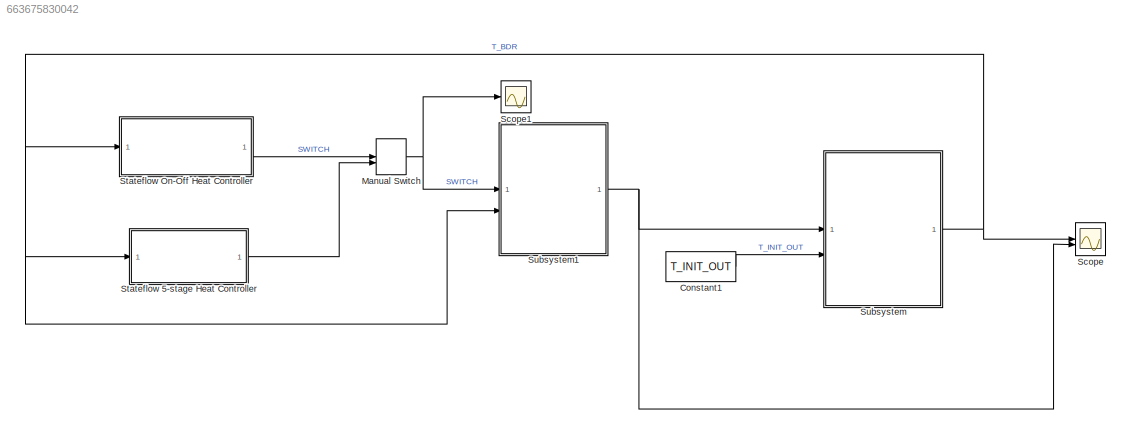
MODEL slx_663675830042
KIND model
CONFIG AbsTol = auto
CONFIG EnableMultiTasking = off
CONFIG FixedStep = 0.1
CONFIG InitFcn = PARAMETERS;
CONFIG MaxStep = auto
CONFIG MinStep = auto
CONFIG RelTol = 1e-3
CONFIG SampleTimeConstraint = Unconstrained
CONFIG SolverName = ode5
CONFIG StartFcn = PARAMETERS;
CONFIG StartTime = 0.0
CONFIG StopTime = 60*60*24
BLOCK [Constant] Constant1
  Value = T_INIT_OUT
BLOCK [ManualSwitch] Manual Switch
  CurrentSetting = 0
BLOCK [Scope] Scope
  Floating = off
  NumInputPorts = 2
  ScopeSpecificationString = Simulink.scopes.TimeScopeBlockCfg('CurrentConfiguration', extmgr.ConfigurationSet(extmgr.Configuration('Core','General UI',true),extmgr.Configuration('Core','Source UI',true),extmgr.Configuration('Sources','WiredSimulink',true),extmgr.Configuration('Visuals','Time Domain',true,'SerializedDisplays',{struct('MinYLimReal','15.23034','MaxYLimReal','22.92466','YLabelReal','','MinYLimMag','15.23034','Ma...<+2103ch>
BLOCK [Scope] Scope1
  Floating = off
  NumInputPorts = 1
  ScopeSpecificationString = Simulink.scopes.TimeScopeBlockCfg('CurrentConfiguration', extmgr.ConfigurationSet(extmgr.Configuration('Core','General UI',true),extmgr.Configuration('Core','Source UI',true),extmgr.Configuration('Sources','WiredSimulink',true,'DataLoggingVariableName','ScopeData1'),extmgr.Configuration('Visuals','Time Domain',true,'SerializedDisplays',{struct('MinYLimReal','-0.02671','MaxYLimReal','0.28116','YLab...<+1409ch>
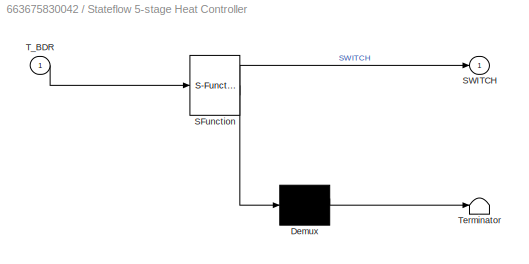
BLOCK [SubSystem] Stateflow 5-stage Heat Controller
  ErrorFcn = Stateflow.Translate.translate
  PermitHierarchicalResolution = ExplicitOnly
  SFBlockType = Chart
  TreatAsAtomicUnit = on
BLOCK [Demux] Stateflow 5-stage Heat Controller/ Demux 
  Outputs = 1
BLOCK [S-Function] Stateflow 5-stage Heat Controller/ SFunction 
  EnableBusSupport = on
  FunctionName = sf_sfun
  PortCounts = [1 2]
  SFcnIsStateOwnerBlock = off
  SFunctionDeploymentMode = off
  Tag = Stateflow S-Function 1
BLOCK [Terminator] Stateflow 5-stage Heat Controller/ Terminator 
BLOCK [Outport] Stateflow 5-stage Heat Controller/SWITCH
BLOCK [Inport] Stateflow 5-stage Heat Controller/T_BDR
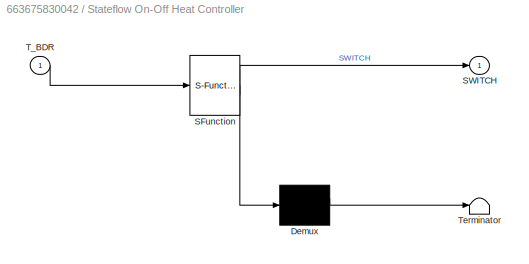
BLOCK [SubSystem] Stateflow On-Off Heat Controller
  ErrorFcn = Stateflow.Translate.translate
  PermitHierarchicalResolution = ExplicitOnly
  SFBlockType = Chart
  TreatAsAtomicUnit = on
BLOCK [Demux] Stateflow On-Off Heat Controller/ Demux 
  Outputs = 1
BLOCK [S-Function] Stateflow On-Off Heat Controller/ SFunction 
  EnableBusSupport = on
  FunctionName = sf_sfun
  PortCounts = [1 2]
  SFcnIsStateOwnerBlock = off
  SFunctionDeploymentMode = off
  Tag = Stateflow S-Function 3
BLOCK [Terminator] Stateflow On-Off Heat Controller/ Terminator 
BLOCK [Outport] Stateflow On-Off Heat Controller/SWITCH
BLOCK [Inport] Stateflow On-Off Heat Controller/T_BDR
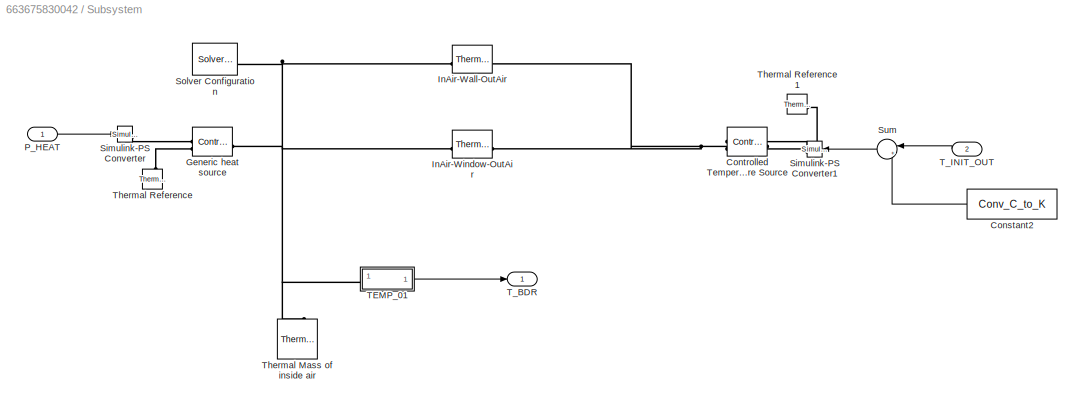
BLOCK [SubSystem] Subsystem
BLOCK [Constant] Subsystem/Constant2
  NameLocation = top
  Value = Conv_C_to_K
BLOCK [Reference] Subsystem/Controlled Temperature Source  REF=fl_lib/Thermal/Thermal Sources/Controlled
Temperature Source
  NameLocation = top
  SourceBlock = fl_lib/Thermal/Thermal Sources/Controlled\nTemperature Source
  SourceType = Controlled\nTemperature Source
BLOCK [Reference] Subsystem/Generic heat source  REF=fl_lib/Thermal/Thermal Sources/Controlled Heat Flow
Rate Source
  SourceBlock = fl_lib/Thermal/Thermal Sources/Controlled Heat Flow\nRate Source
  SourceType = Controlled Heat Flow\nRate Source
BLOCK [Reference] Subsystem/InAir-Wall-OutAir  REF=fl_lib/Thermal/Thermal Elements/Thermal Resistance
  SourceBlock = fl_lib/Thermal/Thermal Elements/Thermal Resistance
  SourceType = Thermal Resistance
BLOCK [Reference] Subsystem/InAir-Window-OutAir  REF=fl_lib/Thermal/Thermal Elements/Thermal Resistance
  SourceBlock = fl_lib/Thermal/Thermal Elements/Thermal Resistance
  SourceType = Thermal Resistance
BLOCK [Inport] Subsystem/P_HEAT
BLOCK [Reference] Subsystem/Simulink-PS Converter  REF=nesl_utility/Simulink-PS
Converter
  SourceBlock = nesl_utility/Simulink-PS\nConverter
  SourceType = Simulink-PS\nConverter
BLOCK [Reference] Subsystem/Simulink-PS Converter1  REF=nesl_utility/Simulink-PS
Converter
  NameLocation = top
  SourceBlock = nesl_utility/Simulink-PS\nConverter
  SourceType = Simulink-PS\nConverter
BLOCK [Reference] Subsystem/Solver Configuration  REF=nesl_utility/Solver
Configuration
  SourceBlock = nesl_utility/Solver\nConfiguration
  SourceType = Solver\nConfiguration
BLOCK [Sum] Subsystem/Sum
  Inputs = |++
  NameLocation = top
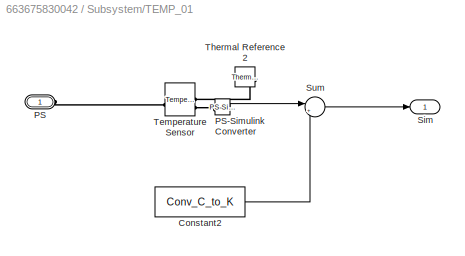
BLOCK [SubSystem] Subsystem/TEMP_01
BLOCK [Constant] Subsystem/TEMP_01/Constant2
  Value = Conv_C_to_K
BLOCK [PMIOPort] Subsystem/TEMP_01/PS
  Side = Left
BLOCK [Reference] Subsystem/TEMP_01/PS-Simulink Converter  REF=nesl_utility/PS-Simulink
Converter
  SourceBlock = nesl_utility/PS-Simulink\nConverter
  SourceType = PS-Simulink\nConverter
BLOCK [Outport] Subsystem/TEMP_01/Sim
BLOCK [Sum] Subsystem/TEMP_01/Sum
  Inputs = |+-
BLOCK [Reference] Subsystem/TEMP_01/Temperature Sensor  REF=fl_lib/Thermal/Thermal Sensors/Temperature Sensor
  SourceBlock = fl_lib/Thermal/Thermal Sensors/Temperature Sensor
  SourceType = Temperature Sensor
BLOCK [Reference] Subsystem/TEMP_01/Thermal Reference2  REF=fl_lib/Thermal/Thermal Elements/Thermal Reference
  NameLocation = top
  SourceBlock = fl_lib/Thermal/Thermal Elements/Thermal Reference
  SourceType = Thermal Reference
BLOCK [Outport] Subsystem/T_BDR
BLOCK [Inport] Subsystem/T_INIT_OUT
  Port = 2
BLOCK [Reference] Subsystem/Thermal Mass of inside air  REF=fl_lib/Thermal/Thermal Elements/Thermal Mass
  SourceBlock = fl_lib/Thermal/Thermal Elements/Thermal Mass
  SourceType = Thermal Mass
BLOCK [Reference] Subsystem/Thermal Reference  REF=fl_lib/Thermal/Thermal Elements/Thermal Reference
  NameLocation = right
  SourceBlock = fl_lib/Thermal/Thermal Elements/Thermal Reference
  SourceType = Thermal Reference
BLOCK [Reference] Subsystem/Thermal Reference1  REF=fl_lib/Thermal/Thermal Elements/Thermal Reference
  NameLocation = top
  SourceBlock = fl_lib/Thermal/Thermal Elements/Thermal Reference
  SourceType = Thermal Reference
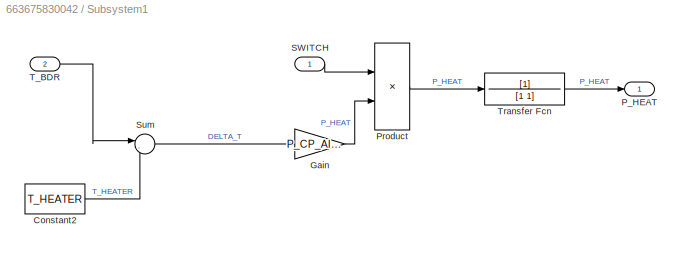
BLOCK [SubSystem] Subsystem1
BLOCK [Constant] Subsystem1/Constant2
  Value = T_HEATER
BLOCK [Gain] Subsystem1/Gain
  Gain = P_CP_AIR*P_HEATER_AIR_FLOW
BLOCK [Outport] Subsystem1/P_HEAT
BLOCK [Product] Subsystem1/Product
BLOCK [Inport] Subsystem1/SWITCH
BLOCK [Sum] Subsystem1/Sum
  Inputs = |-+
BLOCK [Inport] Subsystem1/T_BDR
  Port = 2
BLOCK [TransferFcn] Subsystem1/Transfer Fcn
  Denominator = [1 1]
LINE Constant1:1 -> Subsystem:2
NET Manual Switch:1 -> Scope1:1, Subsystem1:1
LINE Stateflow 5-stage Heat Controller:1 -> Manual Switch:2
LINE Stateflow On-Off Heat Controller:1 -> Manual Switch:1
LINE Subsystem/Constant2:1 -> Subsystem/Sum:2
LINE Subsystem/P_HEAT:1 -> Subsystem/Simulink-PS Converter:1
LINE Subsystem/Sum:1 -> Subsystem/Simulink-PS Converter1:1
LINE Subsystem/TEMP_01/Constant2:1 -> Subsystem/TEMP_01/Sum:2
LINE Subsystem/TEMP_01/PS-Simulink Converter:1 -> Subsystem/TEMP_01/Sum:1
LINE Subsystem/TEMP_01/Sum:1 -> Subsystem/TEMP_01/Sim:1
LINE Subsystem/TEMP_01:1 -> Subsystem/T_BDR:1
LINE Subsystem/T_INIT_OUT:1 -> Subsystem/Sum:1
LINE Subsystem1/Constant2:1 -> Subsystem1/Sum:2
LINE Subsystem1/Gain:1 -> Subsystem1/Product:2
LINE Subsystem1/Product:1 -> Subsystem1/Transfer Fcn:1
LINE Subsystem1/SWITCH:1 -> Subsystem1/Product:1
LINE Subsystem1/Sum:1 -> Subsystem1/Gain:1
LINE Subsystem1/T_BDR:1 -> Subsystem1/Sum:1
LINE Subsystem1/Transfer Fcn:1 -> Subsystem1/P_HEAT:1
NET Subsystem1:1 -> Scope:2, Subsystem:1
NET Subsystem:1 -> Scope:1, Stateflow 5-stage Heat Controller:1, Stateflow On-Off Heat Controller:1, Subsystem1:2
PNET net1: Subsystem/Controlled Temperature Source:LConn1 -- Subsystem/InAir-Wall-OutAir:RConn1 -- Subsystem/InAir-Window-OutAir:RConn1
PLINE Subsystem/Controlled Temperature Source:RConn1 -- Subsystem/Simulink-PS Converter1:RConn1
PLINE Subsystem/Controlled Temperature Source:RConn2 -- Subsystem/Thermal Reference1:LConn1
PNET net2: Subsystem/Generic heat source:LConn1 -- Subsystem/InAir-Wall-OutAir:LConn1 -- Subsystem/InAir-Window-OutAir:LConn1 -- Subsystem/Solver Configuration:RConn1 -- Subsystem/TEMP_01:LConn1 -- Subsystem/Thermal Mass of inside air:LConn1
PLINE Subsystem/Generic heat source:RConn1 -- Subsystem/Simulink-PS Converter:RConn1
PLINE Subsystem/Generic heat source:RConn2 -- Subsystem/Thermal Reference:LConn1
PLINE Subsystem/TEMP_01/PS-Simulink Converter:LConn1 -- Subsystem/TEMP_01/Temperature Sensor:RConn2
PLINE Subsystem/TEMP_01/PS:RConn1 -- Subsystem/TEMP_01/Temperature Sensor:LConn1
PLINE Subsystem/TEMP_01/Temperature Sensor:RConn1 -- Subsystem/TEMP_01/Thermal Reference2:LConn1
note: NET lines group one-source signal fan-out (src -> all destinations, sorted); 1:1 wires keep LINE; PNET lines group multi-terminal physical nets as a canonical sorted terminal list (undirected conserving connections); 2-terminal nets keep the pairwise PLINE form
CHART Stateflow 5-stage
Heat Controller states=5 transitions=9
  STATE_LABEL 'Off\nentry:\nSWITCH = 0;'
  STATE_LABEL 'Low\nentry:\nSWITCH = 0.25;'
  STATE_LABEL 'Medium\nentry:\nSWITCH = 0.5;'
  STATE_LABEL 'High\nentry:\nSWITCH = 0.75;'
  STATE_LABEL 'Full\nentry:\nSWITCH = 1;'
CHART Stateflow On-Off
Heat Controller states=2 transitions=3
  STATE_LABEL 'Off\nentry:\nSWITCH = 0;'
  STATE_LABEL 'On\nentry:\nSWITCH = 1;'
CHART  states=0 transitions=0
CHART  states=0 transitions=0
